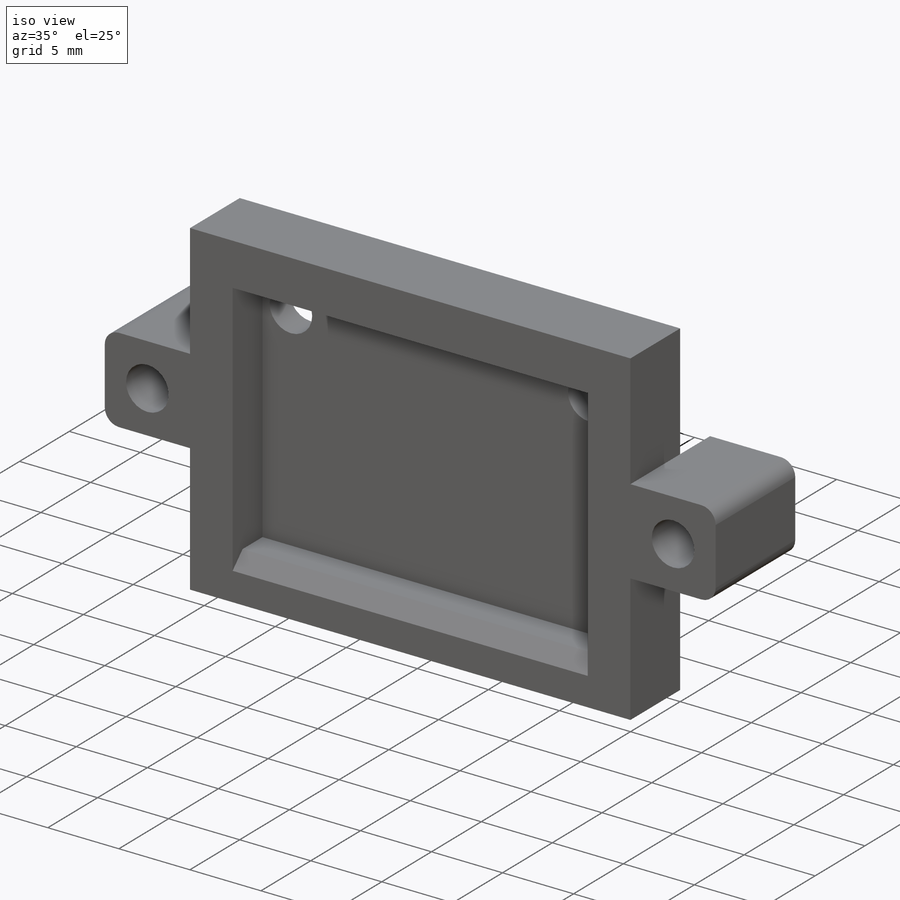
[diagram: iso view]
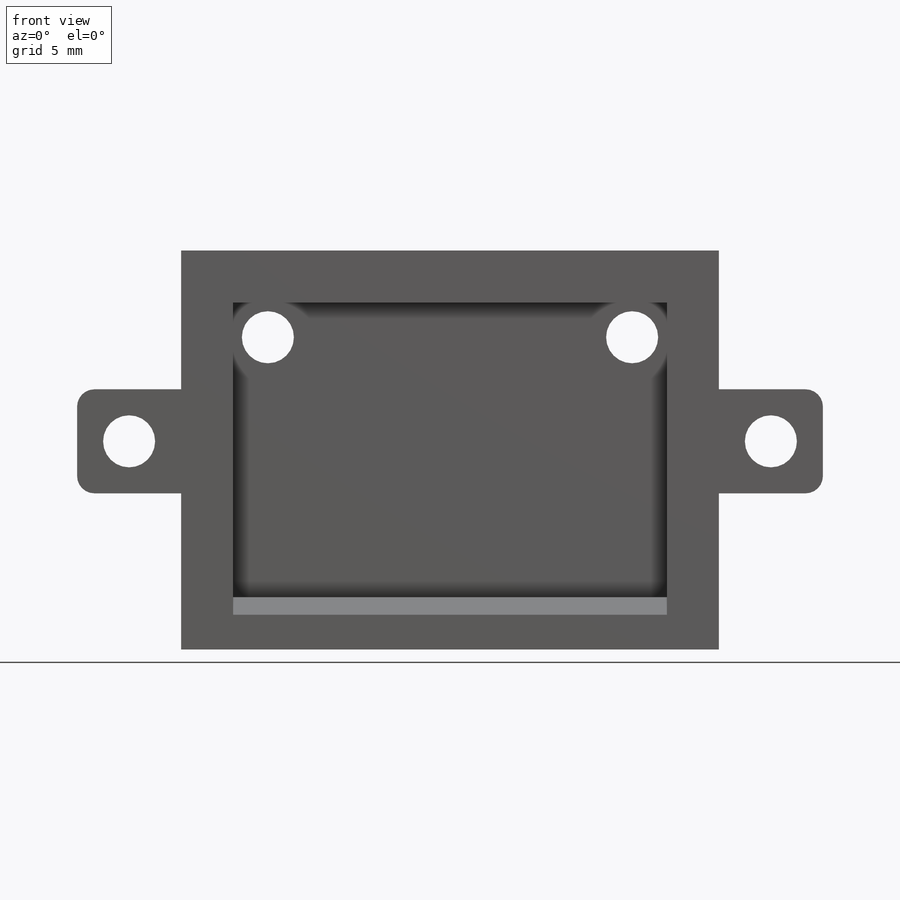
[diagram: front view]
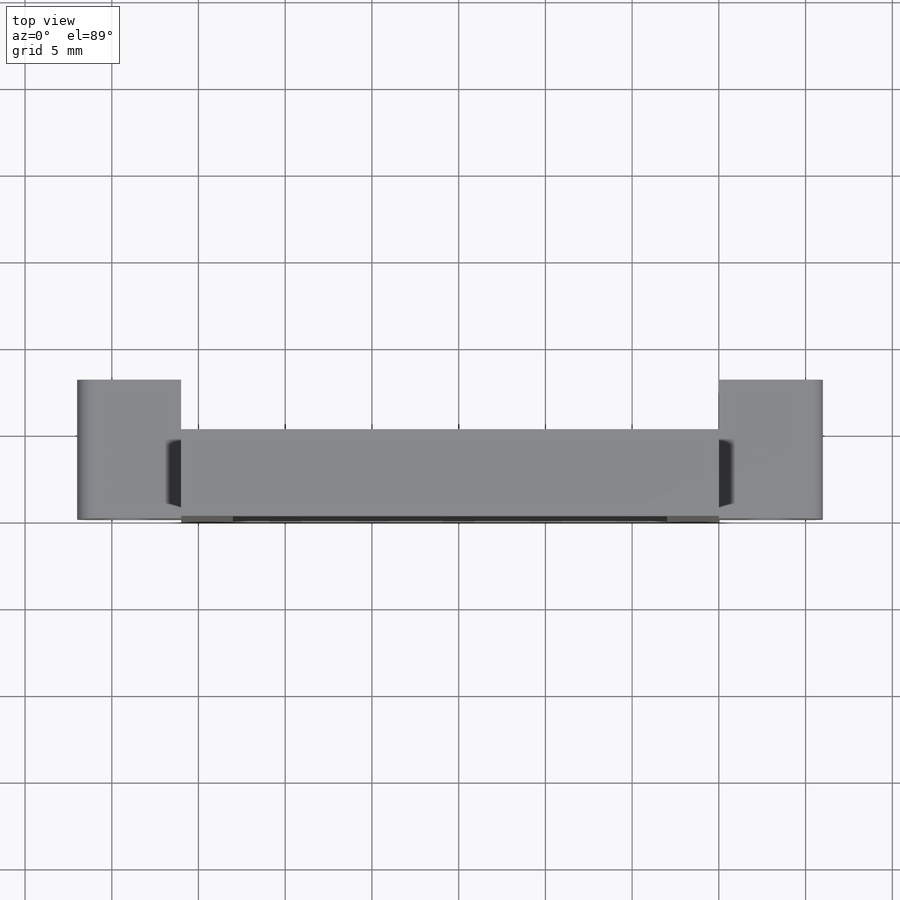
[diagram: top view]
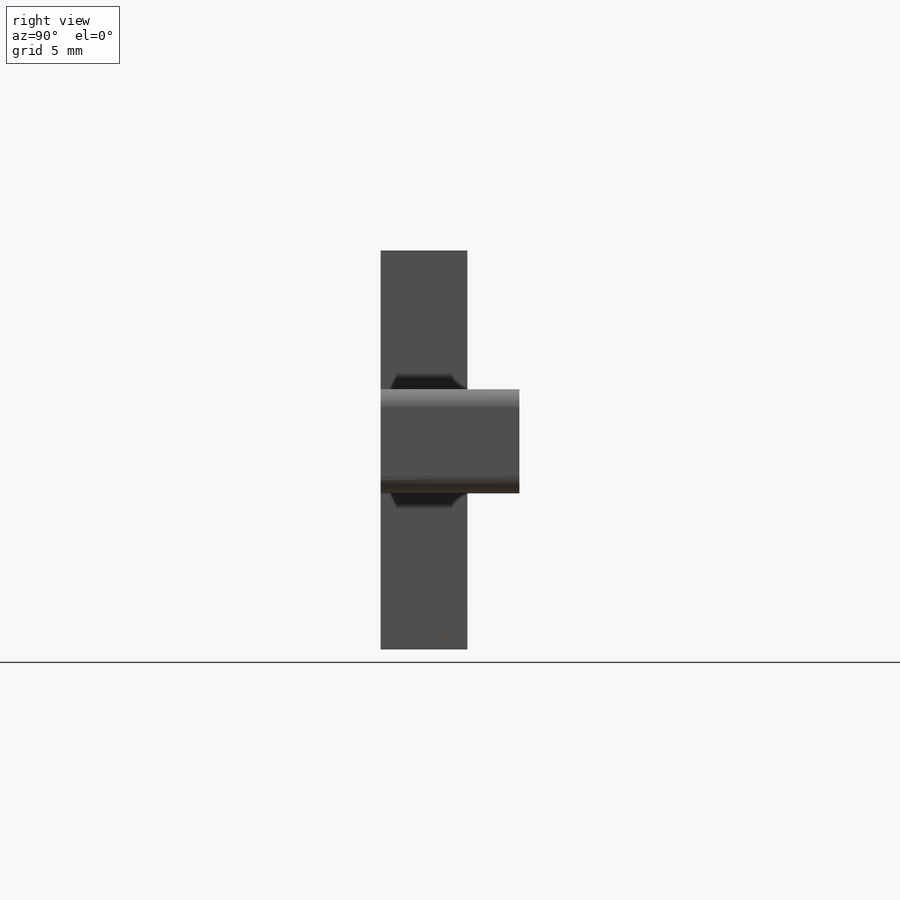
[diagram: right view]
SOLIDWORKS PART (.sldprt)
format: sldprt  version: not decoded by parser v0  size: 242,176 bytes
history: native  units: mm
features: sketch x5, plane x3, cut_extrude x3, extrude x2, material x1, chamfer x1, fillet x1 (+9 scaffold rows collapsed)
feature tree (25):
  scaffold x9  (default folders/planes/origin — collapsed)
  material  "Matériau <non spécifié>"
  plane  "Plan de face"
  plane  "Plan de dessus"
  plane  "Plan de droite"
  sketch  "Esquisse1"  dims[D1=31.0mm D2=23.0mm]
  extrude  "Boss.-Extru.1"  Depth=5mm
  sketch  "Esquisse2"  dims[D1=25.0mm D2=17.0mm D3=3.0mm D4=3.0mm]
  cut_extrude  "Enlèv. mat.-Extru.1"  Depth=3mm
  sketch  "Esquisse3"  dims[D1=3.0mm D2=3.0mm D3=2.0mm D4=2.0mm D5=2.0mm D6=2.0mm]
  sketch  "Esquisse4"  dims[c1.D1=6.0mm c1.D2=6.0mm c1.D3=6.0mm c1.D4=6.0mm c1.D5=2.0mm c1.D6=2.0mm c2.D5=6.0mm c2.D6=6.0mm]
  extrude  "Boss.-Extru.3"  Depth=8mm
  chamfer  "Chanfrein2"  Distance=1mm Angle=45deg
  fillet  "Congé2"  Radius=1mm
  cut_extrude  "Enlèv. mat.-Extru.2"  Depth=3mm
  sketch  "Esquisse5"  dims[D1=3.0mm D2=3.0mm D3=3.0mm D4=3.0mm D5=3.0mm D6=3.0mm]
  cut_extrude  "Enlèv. mat.-Extru.3"  [1 undecoded]
decode coverage: 11 of 12 modeling features carry decoded parameters
note: 1 parameter value undecoded
note: suppression state not decoded; provenance and decode notes live in map.json
